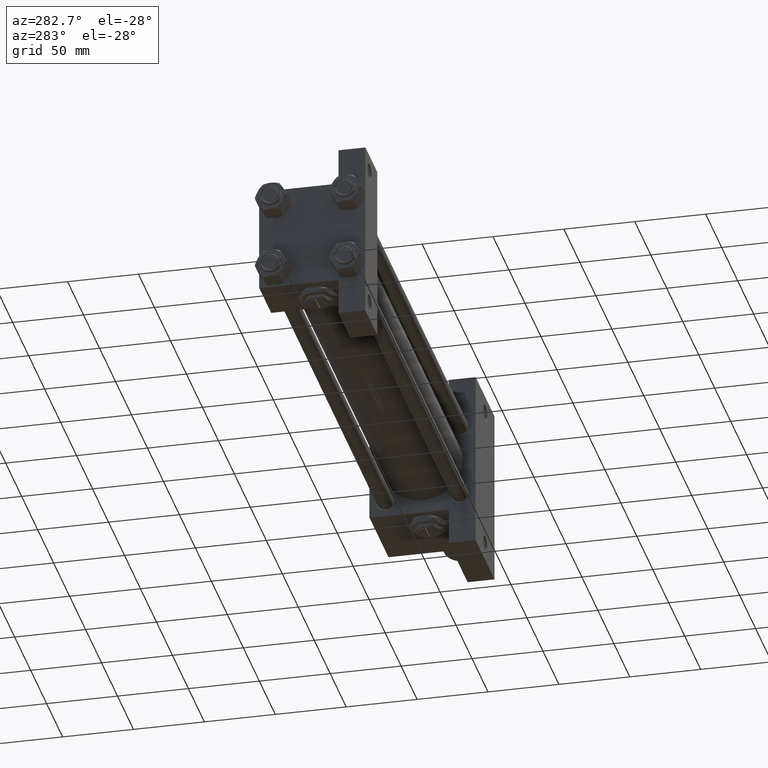
[diagram: clean part render]
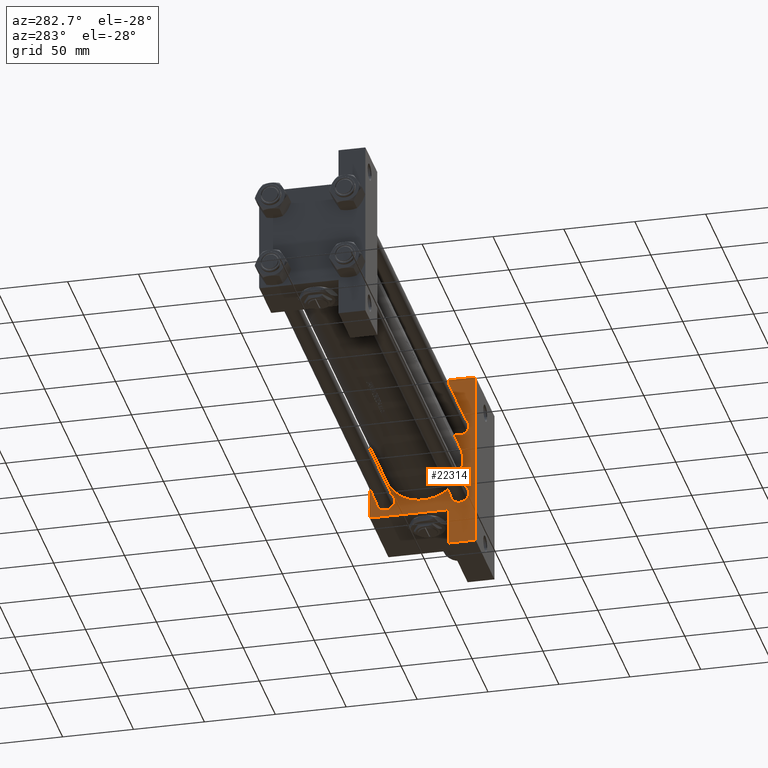
[diagram: same view with one face highlighted and labeled with its STEP entity id]
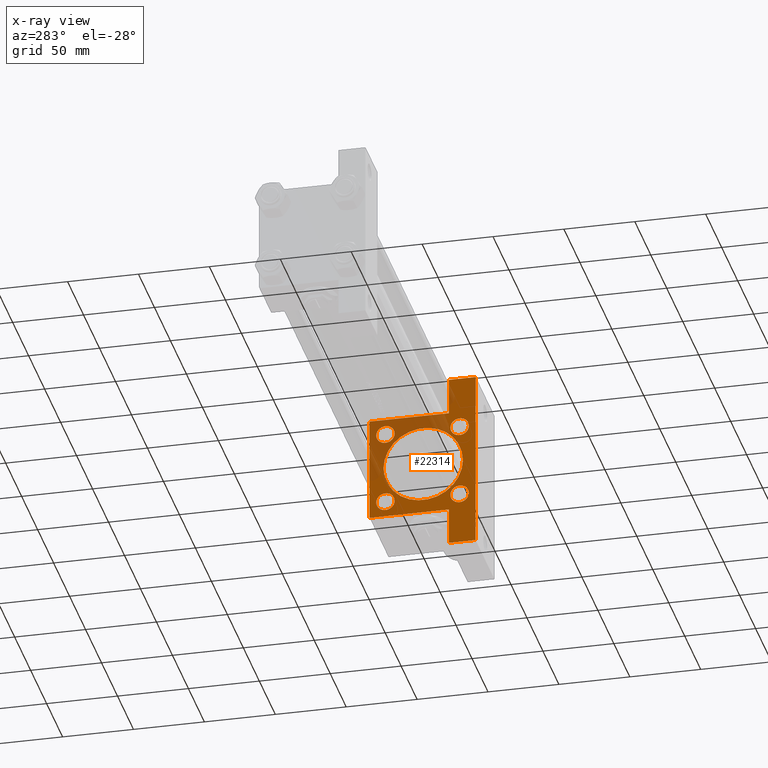
[diagram: x-ray of the same camera — body ghosted, the highlighted face saturated]
A machine part, auxiliary view. The second image highlights one B-rep face of the part: STEP entity #22314.
The next image is the same camera in x-ray: the body ghosted, the highlighted face saturated — about 26% of this face is hidden behind the body in this view.
In plain terms, the highlighted planar face has unit normal (-1, 0, 0).
Its self-contained STEP definition (entity closure, byte-faithful):
#21 = LINE ( 'NONE', #46340, #24647 ) ;
#159 = CARTESIAN_POINT ( 'NONE',  ( 345.0000000000000000, 26.14999999999999858, 32.65000000000000568 ) ) ;
#509 = VERTEX_POINT ( 'NONE', #38888 ) ;
#776 = CARTESIAN_POINT ( 'NONE',  ( 345.0000000000000000, 26.14999999999999858, -19.64999999999999503 ) ) ;
#1418 = DIRECTION ( 'NONE',  ( 1.000000000000000000, 0.000000000000000000, -0.000000000000000000 ) ) ;
#1499 = AXIS2_PLACEMENT_3D ( 'NONE', #47482, #1418, #12550 ) ;
#2708 = ORIENTED_EDGE ( 'NONE', *, *, #3416, .T. ) ;
#3302 = EDGE_LOOP ( 'NONE', ( #36156, #44707 ) ) ;
#3303 = AXIS2_PLACEMENT_3D ( 'NONE', #17552, #20850, #47676 ) ;
#3416 = EDGE_CURVE ( 'NONE', #16569, #41059, #21742, .T. ) ;
#3491 = DIRECTION ( 'NONE',  ( 0.000000000000000000, 0.000000000000000000, 1.000000000000000000 ) ) ;
#3879 = CARTESIAN_POINT ( 'NONE',  ( 345.0000000000000000, -37.50000000000000000, -18.50000000000000000 ) ) ;
#4432 = DIRECTION ( 'NONE',  ( 1.000000000000000000, 0.000000000000000000, -0.000000000000000000 ) ) ;
#4635 = ORIENTED_EDGE ( 'NONE', *, *, #36599, .T. ) ;
#4808 = DIRECTION ( 'NONE',  ( 0.000000000000000000, -9.251858538542972814E-17, -1.000000000000000000 ) ) ;
#4823 = VERTEX_POINT ( 'NONE', #15086 ) ;
#4997 = VECTOR ( 'NONE', #37429, 1000.000000000000000 ) ;
#5761 = EDGE_LOOP ( 'NONE', ( #19467, #6069 ) ) ;
#6069 = ORIENTED_EDGE ( 'NONE', *, *, #34154, .T. ) ;
#6800 = DIRECTION ( 'NONE',  ( 1.000000000000000000, 0.000000000000000000, -0.000000000000000000 ) ) ;
#7367 = EDGE_LOOP ( 'NONE', ( #16893, #2708 ) ) ;
#7607 = ORIENTED_EDGE ( 'NONE', *, *, #46885, .T. ) ;
#7773 = VERTEX_POINT ( 'NONE', #35694 ) ;
#7775 = DIRECTION ( 'NONE',  ( 0.000000000000000000, 0.7071067811865474617, -0.7071067811865474617 ) ) ;
#7843 = CARTESIAN_POINT ( 'NONE',  ( 345.0000000000000000, -37.50000000000000000, 37.49999999999997868 ) ) ;
#8410 = FACE_BOUND ( 'NONE', #10857, .T. ) ;
#8420 = VERTEX_POINT ( 'NONE', #3879 ) ;
#8490 = EDGE_CURVE ( 'NONE', #19406, #44668, #44594, .T. ) ;
#8598 = LINE ( 'NONE', #7843, #18714 ) ;
#8782 = VERTEX_POINT ( 'NONE', #776 ) ;
#8870 = EDGE_CURVE ( 'NONE', #26375, #45654, #37774, .T. ) ;
#8903 = PLANE ( 'NONE',  #17111 ) ;
#9297 = CARTESIAN_POINT ( 'NONE',  ( 345.0000000000000000, 37.50000000000000000, 37.49999999999999289 ) ) ;
#9326 = ORIENTED_EDGE ( 'NONE', *, *, #44958, .T. ) ;
#9702 = CARTESIAN_POINT ( 'NONE',  ( 345.0000000000000000, -26.14999999999999147, -26.15000000000000924 ) ) ;
#10088 = VECTOR ( 'NONE', #28850, 1000.000000000000000 ) ;
#10717 = CARTESIAN_POINT ( 'NONE',  ( 345.0000000000000000, 26.14999999999999858, 19.65000000000000568 ) ) ;
#10857 = EDGE_LOOP ( 'NONE', ( #12397, #13498 ) ) ;
#11003 = EDGE_CURVE ( 'NONE', #22544, #13166, #28579, .T. ) ;
#11063 = VECTOR ( 'NONE', #39176, 1000.000000000000000 ) ;
#11316 = CIRCLE ( 'NONE', #25063, 28.00000000000000000 ) ;
#11340 = CARTESIAN_POINT ( 'NONE',  ( 345.0000000000000000, -26.14999999999999147, -26.15000000000000924 ) ) ;
#11652 = DIRECTION ( 'NONE',  ( 0.000000000000000000, -1.000000000000000000, 0.000000000000000000 ) ) ;
#11928 = CARTESIAN_POINT ( 'NONE',  ( 345.0000000000000000, -26.14999999999999147, -32.65000000000002700 ) ) ;
#11997 = DIRECTION ( 'NONE',  ( 1.000000000000000000, 0.000000000000000000, -0.000000000000000000 ) ) ;
#12142 = LINE ( 'NONE', #16469, #38123 ) ;
#12281 = VECTOR ( 'NONE', #7775, 1000.000000000000114 ) ;
#12351 = CARTESIAN_POINT ( 'NONE',  ( 345.0000000000000000, 0.000000000000000000, -0.5000000000000004441 ) ) ;
#12397 = ORIENTED_EDGE ( 'NONE', *, *, #8870, .T. ) ;
#12550 = DIRECTION ( 'NONE',  ( 0.000000000000000000, 0.000000000000000000, 1.000000000000000000 ) ) ;
#12587 = DIRECTION ( 'NONE',  ( 0.000000000000000000, 0.000000000000000000, -1.000000000000000000 ) ) ;
#13166 = VERTEX_POINT ( 'NONE', #26960 ) ;
#13215 = CARTESIAN_POINT ( 'NONE',  ( 345.0000000000000000, 63.49999999999997158, -18.50000000000000000 ) ) ;
#13498 = ORIENTED_EDGE ( 'NONE', *, *, #30562, .T. ) ;
#14946 = CIRCLE ( 'NONE', #43246, 6.500000000000008882 ) ;
#15065 = EDGE_LOOP ( 'NONE', ( #25316, #21353, #7607, #9326, #23643, #46873, #16034, #43861, #49244, #33632 ) ) ;
#15086 = CARTESIAN_POINT ( 'NONE',  ( 345.0000000000000000, -26.14999999999999147, 32.65000000000001990 ) ) ;
#15119 = CARTESIAN_POINT ( 'NONE',  ( 345.0000000000000000, 37.25000000000000000, 37.25000000000000000 ) ) ;
#15373 = LINE ( 'NONE', #15119, #12281 ) ;
#15915 = EDGE_CURVE ( 'NONE', #7773, #8782, #39500, .T. ) ;
#15983 = CARTESIAN_POINT ( 'NONE',  ( 345.0000000000000000, 3.429011037612589276E-15, -28.50000000000000000 ) ) ;
#16034 = ORIENTED_EDGE ( 'NONE', *, *, #36838, .F. ) ;
#16079 = DIRECTION ( 'NONE',  ( 0.000000000000000000, 0.000000000000000000, 1.000000000000000000 ) ) ;
#16469 = CARTESIAN_POINT ( 'NONE',  ( 345.0000000000000000, -37.24999999999999289, 37.24999999999999289 ) ) ;
#16569 = VERTEX_POINT ( 'NONE', #11928 ) ;
#16893 = ORIENTED_EDGE ( 'NONE', *, *, #48950, .T. ) ;
#17061 = CARTESIAN_POINT ( 'NONE',  ( 345.0000000000000000, 63.49999999999997158, -37.50000000000000000 ) ) ;
#17111 = AXIS2_PLACEMENT_3D ( 'NONE', #24355, #20567, #47635 ) ;
#17552 = CARTESIAN_POINT ( 'NONE',  ( 345.0000000000000000, -26.14999999999999147, 26.15000000000000924 ) ) ;
#18705 = DIRECTION ( 'NONE',  ( 1.000000000000000000, 0.000000000000000000, -0.000000000000000000 ) ) ;
#18713 = DIRECTION ( 'NONE',  ( 0.000000000000000000, 0.000000000000000000, 1.000000000000000000 ) ) ;
#18714 = VECTOR ( 'NONE', #4808, 1000.000000000000000 ) ;
#19076 = CIRCLE ( 'NONE', #40044, 6.500000000000008882 ) ;
#19197 = EDGE_CURVE ( 'NONE', #20826, #27500, #11316, .T. ) ;
#19339 = LINE ( 'NONE', #41870, #44076 ) ;
#19406 = VERTEX_POINT ( 'NONE', #24692 ) ;
#19440 = CARTESIAN_POINT ( 'NONE',  ( 345.0000000000000000, -26.14999999999999147, 26.15000000000000924 ) ) ;
#19467 = ORIENTED_EDGE ( 'NONE', *, *, #28967, .T. ) ;
#19619 = CARTESIAN_POINT ( 'NONE',  ( 345.0000000000000000, 26.14999999999999858, 26.15000000000000213 ) ) ;
#19864 = DIRECTION ( 'NONE',  ( 0.000000000000000000, 0.000000000000000000, 1.000000000000000000 ) ) ;
#20196 = EDGE_CURVE ( 'NONE', #27500, #20826, #31558, .T. ) ;
#20567 = DIRECTION ( 'NONE',  ( -1.000000000000000000, -0.000000000000000000, 0.000000000000000000 ) ) ;
#20826 = VERTEX_POINT ( 'NONE', #15983 ) ;
#20850 = DIRECTION ( 'NONE',  ( 1.000000000000000000, 0.000000000000000000, -0.000000000000000000 ) ) ;
#21353 = ORIENTED_EDGE ( 'NONE', *, *, #37850, .T. ) ;
#21723 = EDGE_CURVE ( 'NONE', #29664, #8420, #8598, .T. ) ;
#21742 = CIRCLE ( 'NONE', #49993, 6.500000000000008882 ) ;
#21746 = VERTEX_POINT ( 'NONE', #43526 ) ;
#21768 = LINE ( 'NONE', #29620, #4997 ) ;
#21909 = VERTEX_POINT ( 'NONE', #37664 ) ;
#21957 = CARTESIAN_POINT ( 'NONE',  ( 345.0000000000000000, -37.50000000000000000, 36.99999999999997868 ) ) ;
#22314 = ADVANCED_FACE ( 'NONE', ( #47377, #8410, #28184, #43585, #39278, #27416 ), #8903, .T. ) ;
#22433 = AXIS2_PLACEMENT_3D ( 'NONE', #19619, #11997, #19864 ) ;
#22544 = VERTEX_POINT ( 'NONE', #38234 ) ;
#22679 = EDGE_CURVE ( 'NONE', #29664, #13166, #12142, .T. ) ;
#23643 = ORIENTED_EDGE ( 'NONE', *, *, #8490, .T. ) ;
#24355 = CARTESIAN_POINT ( 'NONE',  ( 345.0000000000000000, 0.000000000000000000, 0.000000000000000000 ) ) ;
#24390 = DIRECTION ( 'NONE',  ( 0.000000000000000000, 0.000000000000000000, 1.000000000000000000 ) ) ;
#24647 = VECTOR ( 'NONE', #11652, 1000.000000000000000 ) ;
#24692 = CARTESIAN_POINT ( 'NONE',  ( 345.0000000000000000, 63.49999999999997158, -18.50000000000000000 ) ) ;
#24765 = DIRECTION ( 'NONE',  ( 0.000000000000000000, 0.000000000000000000, -1.000000000000000000 ) ) ;
#25063 = AXIS2_PLACEMENT_3D ( 'NONE', #12351, #38188, #30622 ) ;
#25111 = EDGE_LOOP ( 'NONE', ( #4635, #36163 ) ) ;
#25141 = DIRECTION ( 'NONE',  ( 1.000000000000000000, 0.000000000000000000, -0.000000000000000000 ) ) ;
#25316 = ORIENTED_EDGE ( 'NONE', *, *, #11003, .F. ) ;
#26255 = VECTOR ( 'NONE', #12587, 1000.000000000000000 ) ;
#26375 = VERTEX_POINT ( 'NONE', #159 ) ;
#26960 = CARTESIAN_POINT ( 'NONE',  ( 345.0000000000000000, -37.00000000000000000, 37.49999999999997868 ) ) ;
#27416 = FACE_OUTER_BOUND ( 'NONE', #15065, .T. ) ;
#27500 = VERTEX_POINT ( 'NONE', #33740 ) ;
#27556 = CARTESIAN_POINT ( 'NONE',  ( 345.0000000000000000, 37.50000000000000000, 37.49999999999999289 ) ) ;
#28016 = DIRECTION ( 'NONE',  ( 1.000000000000000000, 0.000000000000000000, -0.000000000000000000 ) ) ;
#28184 = FACE_BOUND ( 'NONE', #25111, .T. ) ;
#28579 = LINE ( 'NONE', #9297, #11063 ) ;
#28653 = CARTESIAN_POINT ( 'NONE',  ( 345.0000000000000000, -63.50000000000002842, -37.50000000000000000 ) ) ;
#28744 = CARTESIAN_POINT ( 'NONE',  ( 345.0000000000000000, 26.14999999999999858, -26.15000000000000213 ) ) ;
#28850 = DIRECTION ( 'NONE',  ( -0.000000000000000000, 1.000000000000000000, -0.000000000000000000 ) ) ;
#28967 = EDGE_CURVE ( 'NONE', #4823, #42404, #19076, .T. ) ;
#29285 = CARTESIAN_POINT ( 'NONE',  ( 345.0000000000000000, -26.14999999999999147, 19.65000000000000213 ) ) ;
#29620 = CARTESIAN_POINT ( 'NONE',  ( 345.0000000000000000, -63.50000000000002842, -18.50000000000000000 ) ) ;
#29664 = VERTEX_POINT ( 'NONE', #21957 ) ;
#30099 = CIRCLE ( 'NONE', #49424, 6.500000000000008882 ) ;
#30562 = EDGE_CURVE ( 'NONE', #45654, #26375, #42538, .T. ) ;
#30622 = DIRECTION ( 'NONE',  ( 0.000000000000000000, 0.000000000000000000, -1.000000000000000000 ) ) ;
#31558 = CIRCLE ( 'NONE', #36400, 28.00000000000000000 ) ;
#31791 = DIRECTION ( 'NONE',  ( 0.000000000000000000, 0.000000000000000000, 1.000000000000000000 ) ) ;
#31897 = DIRECTION ( 'NONE',  ( -0.000000000000000000, 0.7071067811865474617, 0.7071067811865474617 ) ) ;
#32388 = LINE ( 'NONE', #40454, #10088 ) ;
#33226 = CIRCLE ( 'NONE', #3303, 6.500000000000008882 ) ;
#33632 = ORIENTED_EDGE ( 'NONE', *, *, #22679, .T. ) ;
#33740 = CARTESIAN_POINT ( 'NONE',  ( 345.0000000000000000, 0.000000000000000000, 27.50000000000000000 ) ) ;
#34154 = EDGE_CURVE ( 'NONE', #42404, #4823, #33226, .T. ) ;
#34773 = DIRECTION ( 'NONE',  ( 0.000000000000000000, 1.000000000000000000, 0.000000000000000000 ) ) ;
#35694 = CARTESIAN_POINT ( 'NONE',  ( 345.0000000000000000, 26.14999999999999858, -32.65000000000001279 ) ) ;
#36156 = ORIENTED_EDGE ( 'NONE', *, *, #20196, .T. ) ;
#36163 = ORIENTED_EDGE ( 'NONE', *, *, #15915, .T. ) ;
#36400 = AXIS2_PLACEMENT_3D ( 'NONE', #43494, #40435, #24765 ) ;
#36599 = EDGE_CURVE ( 'NONE', #8782, #7773, #30099, .T. ) ;
#36696 = CARTESIAN_POINT ( 'NONE',  ( 345.0000000000000000, -26.14999999999999147, -19.65000000000000213 ) ) ;
#36838 = EDGE_CURVE ( 'NONE', #21746, #41903, #21768, .T. ) ;
#36994 = DIRECTION ( 'NONE',  ( 0.000000000000000000, 0.000000000000000000, -1.000000000000000000 ) ) ;
#37429 = DIRECTION ( 'NONE',  ( 0.000000000000000000, 0.000000000000000000, -1.000000000000000000 ) ) ;
#37664 = CARTESIAN_POINT ( 'NONE',  ( 345.0000000000000000, 37.50000000000000000, -18.50000000000000355 ) ) ;
#37774 = CIRCLE ( 'NONE', #22433, 6.499999999999995559 ) ;
#37850 = EDGE_CURVE ( 'NONE', #22544, #509, #15373, .T. ) ;
#38123 = VECTOR ( 'NONE', #31897, 1000.000000000000114 ) ;
#38188 = DIRECTION ( 'NONE',  ( 1.000000000000000000, 0.000000000000000000, 0.000000000000000000 ) ) ;
#38234 = CARTESIAN_POINT ( 'NONE',  ( 345.0000000000000000, 37.00000000000000000, 37.49999999999999289 ) ) ;
#38871 = VECTOR ( 'NONE', #36994, 1000.000000000000000 ) ;
#38888 = CARTESIAN_POINT ( 'NONE',  ( 345.0000000000000000, 37.50000000000000000, 36.99999999999999289 ) ) ;
#39176 = DIRECTION ( 'NONE',  ( 0.000000000000000000, -1.000000000000000000, -1.850371707708594316E-16 ) ) ;
#39278 = FACE_BOUND ( 'NONE', #3302, .T. ) ;
#39500 = CIRCLE ( 'NONE', #1499, 6.500000000000008882 ) ;
#40044 = AXIS2_PLACEMENT_3D ( 'NONE', #19440, #18705, #3491 ) ;
#40435 = DIRECTION ( 'NONE',  ( 1.000000000000000000, 0.000000000000000000, 0.000000000000000000 ) ) ;
#40454 = CARTESIAN_POINT ( 'NONE',  ( 345.0000000000000000, 63.49999999999997158, -18.50000000000000000 ) ) ;
#41059 = VERTEX_POINT ( 'NONE', #36696 ) ;
#41870 = CARTESIAN_POINT ( 'NONE',  ( 345.0000000000000000, -63.50000000000002842, -18.50000000000000000 ) ) ;
#41903 = VERTEX_POINT ( 'NONE', #28653 ) ;
#42404 = VERTEX_POINT ( 'NONE', #29285 ) ;
#42538 = CIRCLE ( 'NONE', #44970, 6.499999999999995559 ) ;
#43246 = AXIS2_PLACEMENT_3D ( 'NONE', #9702, #25141, #24390 ) ;
#43494 = CARTESIAN_POINT ( 'NONE',  ( 345.0000000000000000, 0.000000000000000000, -0.5000000000000004441 ) ) ;
#43526 = CARTESIAN_POINT ( 'NONE',  ( 345.0000000000000000, -63.50000000000002842, -18.50000000000000000 ) ) ;
#43585 = FACE_BOUND ( 'NONE', #7367, .T. ) ;
#43861 = ORIENTED_EDGE ( 'NONE', *, *, #48138, .T. ) ;
#44076 = VECTOR ( 'NONE', #34773, 1000.000000000000000 ) ;
#44594 = LINE ( 'NONE', #13215, #38871 ) ;
#44668 = VERTEX_POINT ( 'NONE', #17061 ) ;
#44707 = ORIENTED_EDGE ( 'NONE', *, *, #19197, .T. ) ;
#44958 = EDGE_CURVE ( 'NONE', #21909, #19406, #32388, .T. ) ;
#44970 = AXIS2_PLACEMENT_3D ( 'NONE', #47717, #28016, #31791 ) ;
#45654 = VERTEX_POINT ( 'NONE', #10717 ) ;
#46340 = CARTESIAN_POINT ( 'NONE',  ( 345.0000000000000000, 37.50000000000000000, -37.50000000000000000 ) ) ;
#46873 = ORIENTED_EDGE ( 'NONE', *, *, #47622, .T. ) ;
#46885 = EDGE_CURVE ( 'NONE', #509, #21909, #47263, .T. ) ;
#47263 = LINE ( 'NONE', #27556, #26255 ) ;
#47377 = FACE_BOUND ( 'NONE', #5761, .T. ) ;
#47482 = CARTESIAN_POINT ( 'NONE',  ( 345.0000000000000000, 26.14999999999999858, -26.15000000000000213 ) ) ;
#47622 = EDGE_CURVE ( 'NONE', #44668, #41903, #21, .T. ) ;
#47635 = DIRECTION ( 'NONE',  ( 0.000000000000000000, 0.000000000000000000, 1.000000000000000000 ) ) ;
#47676 = DIRECTION ( 'NONE',  ( 0.000000000000000000, 0.000000000000000000, 1.000000000000000000 ) ) ;
#47717 = CARTESIAN_POINT ( 'NONE',  ( 345.0000000000000000, 26.14999999999999858, 26.15000000000000213 ) ) ;
#48138 = EDGE_CURVE ( 'NONE', #21746, #8420, #19339, .T. ) ;
#48950 = EDGE_CURVE ( 'NONE', #41059, #16569, #14946, .T. ) ;
#49244 = ORIENTED_EDGE ( 'NONE', *, *, #21723, .F. ) ;
#49424 = AXIS2_PLACEMENT_3D ( 'NONE', #28744, #4432, #16079 ) ;
#49993 = AXIS2_PLACEMENT_3D ( 'NONE', #11340, #6800, #18713 ) ;